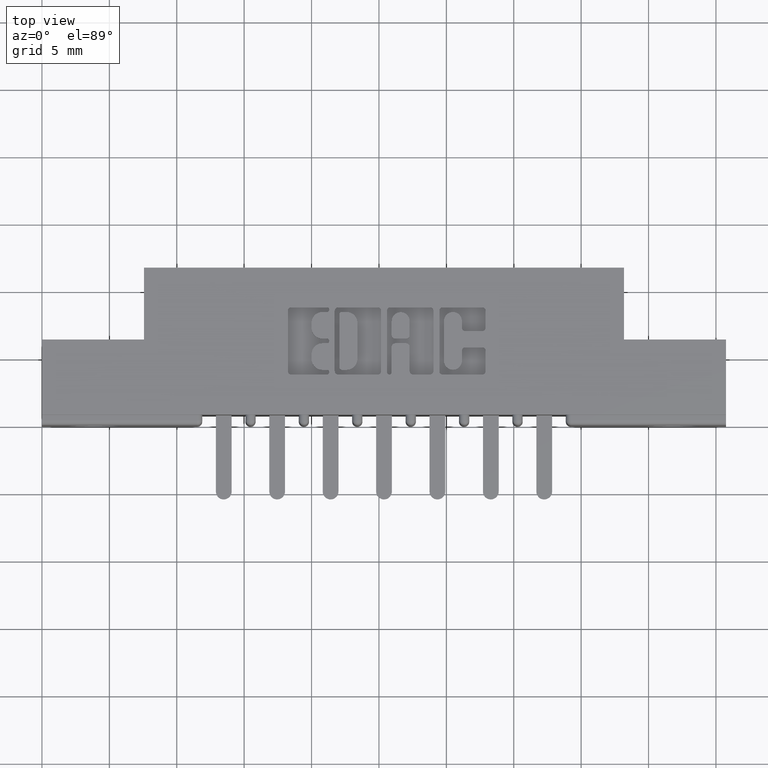
[diagram: clean part render]
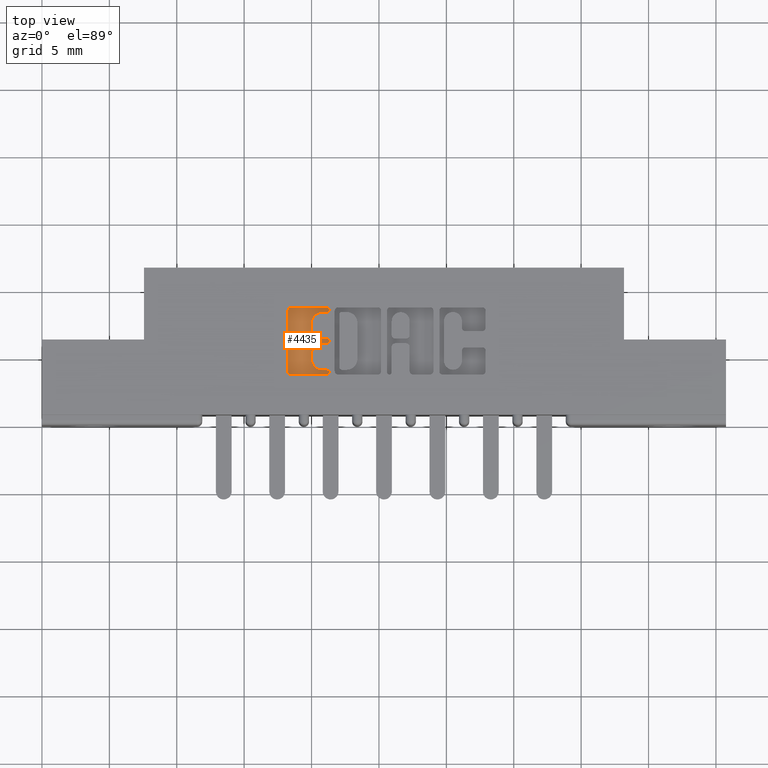
[diagram: same view with one face highlighted and labeled with its STEP entity id]
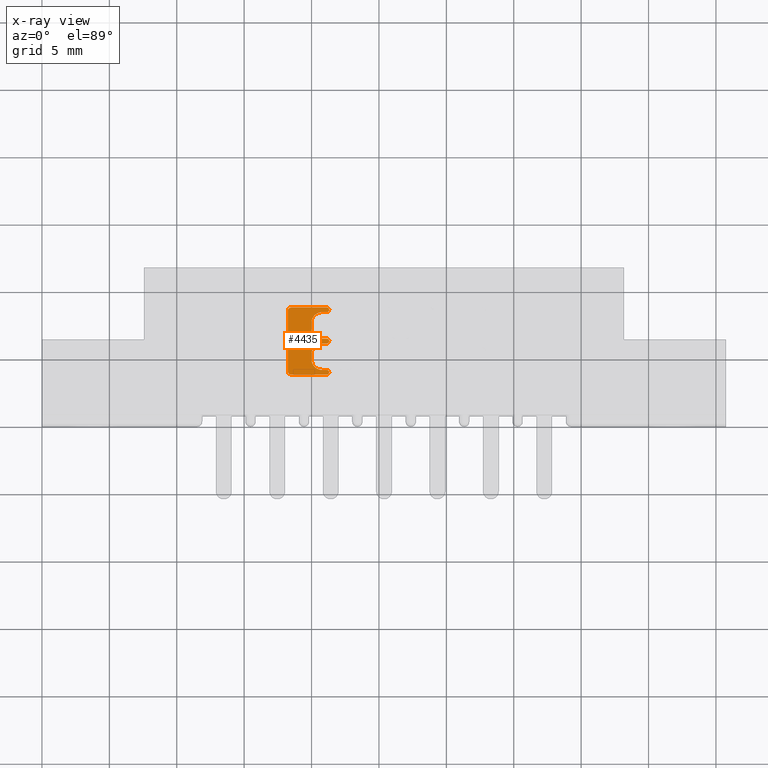
[diagram: x-ray of the same camera — body ghosted, the highlighted face saturated]
A machine part, top view. The second image highlights one B-rep face of the part: STEP entity #4435.
The next image is the same camera in x-ray: the body ghosted, the highlighted face saturated — about 0% of this face is hidden behind the body in this view.
In plain terms, the highlighted planar face has unit normal (0, 0, 1).
Its self-contained STEP definition (entity closure, byte-faithful):
#32 = VERTEX_POINT ( 'NONE', #7226 ) ;
#114 = VECTOR ( 'NONE', #4771, 39.37007874015748100 ) ;
#243 = VERTEX_POINT ( 'NONE', #1225 ) ;
#392 = VERTEX_POINT ( 'NONE', #11769 ) ;
#413 = ORIENTED_EDGE ( 'NONE', *, *, #1010, .T. ) ;
#488 = LINE ( 'NONE', #4580, #10537 ) ;
#530 = ORIENTED_EDGE ( 'NONE', *, *, #2245, .T. ) ;
#543 = VERTEX_POINT ( 'NONE', #7620 ) ;
#737 = AXIS2_PLACEMENT_3D ( 'NONE', #1896, #1925, #1958 ) ;
#756 = DIRECTION ( 'NONE',  ( -0.0000000000000000000, 0.0000000000000000000, 1.000000000000000000 ) ) ;
#757 = VERTEX_POINT ( 'NONE', #10486 ) ;
#869 = ORIENTED_EDGE ( 'NONE', *, *, #2260, .T. ) ;
#876 = AXIS2_PLACEMENT_3D ( 'NONE', #2566, #9566, #9499 ) ;
#912 = EDGE_CURVE ( 'NONE', #8102, #5286, #5911, .T. ) ;
#940 = EDGE_CURVE ( 'NONE', #543, #243, #9705, .T. ) ;
#1010 = EDGE_CURVE ( 'NONE', #9501, #32, #3511, .T. ) ;
#1039 = AXIS2_PLACEMENT_3D ( 'NONE', #1310, #8124, #8280 ) ;
#1078 = CARTESIAN_POINT ( 'NONE',  ( 0.8186370600051253700, 0.2985046191005228400, -0.01000000000000000000 ) ) ;
#1106 = CARTESIAN_POINT ( 'NONE',  ( 0.8321336065353512900, 0.3299147637527387600, -0.01000000000000000000 ) ) ;
#1225 = CARTESIAN_POINT ( 'NONE',  ( 0.8321336064154143400, 0.1610852362473132500, -0.01000000000000000000 ) ) ;
#1237 = CARTESIAN_POINT ( 'NONE',  ( 0.8186370600050839600, 0.2072188862052035700, -0.01000000000000000000 ) ) ;
#1253 = VERTEX_POINT ( 'NONE', #5227 ) ;
#1289 = CARTESIAN_POINT ( 'NONE',  ( 0.7180264404161154100, 0.1571589681657929700, -0.01000000000000000000 ) ) ;
#1310 = CARTESIAN_POINT ( 'NONE',  ( 0.8321336065353355200, 0.1542142671046509700, -0.01000000000000000000 ) ) ;
#1497 = CARTESIAN_POINT ( 'NONE',  ( 0.7872269153529095600, 0.0000000000000000000, -0.01000000000000000000 ) ) ;
#1585 = VERTEX_POINT ( 'NONE', #4252 ) ;
#1616 = LINE ( 'NONE', #9672, #6627 ) ;
#1680 = AXIS2_PLACEMENT_3D ( 'NONE', #11497, #11355, #11241 ) ;
#1729 = DIRECTION ( 'NONE',  ( 1.000000000000000000, 0.0000000000000000000, 0.0000000000000000000 ) ) ;
#1896 = CARTESIAN_POINT ( 'NONE',  ( 0.8321336065353512900, 0.3367857328953892700, -0.01000000000000000000 ) ) ;
#1925 = DIRECTION ( 'NONE',  ( -0.0000000000000000000, 0.0000000000000000000, 1.000000000000000000 ) ) ;
#1928 = EDGE_CURVE ( 'NONE', #392, #11152, #10328, .T. ) ;
#1958 = DIRECTION ( 'NONE',  ( 1.000000000000000000, 0.0000000000000000000, 0.0000000000000000000 ) ) ;
#1967 = EDGE_CURVE ( 'NONE', #3816, #11152, #2143, .T. ) ;
#1973 = EDGE_CURVE ( 'NONE', #3816, #757, #5127, .T. ) ;
#1977 = VECTOR ( 'NONE', #4999, 39.37007874015748100 ) ;
#2007 = AXIS2_PLACEMENT_3D ( 'NONE', #5121, #3519, #7414 ) ;
#2011 = EDGE_CURVE ( 'NONE', #32, #757, #6469, .T. ) ;
#2029 = EDGE_CURVE ( 'NONE', #5444, #9501, #8938, .T. ) ;
#2050 = EDGE_CURVE ( 'NONE', #10271, #5444, #5867, .T. ) ;
#2054 = EDGE_CURVE ( 'NONE', #10271, #11503, #8056, .T. ) ;
#2069 = EDGE_CURVE ( 'NONE', #1585, #11503, #3316, .T. ) ;
#2103 = EDGE_CURVE ( 'NONE', #1585, #7206, #4971, .T. ) ;
#2111 = EDGE_CURVE ( 'NONE', #243, #7206, #11760, .T. ) ;
#2132 = LINE ( 'NONE', #7337, #7068 ) ;
#2143 = LINE ( 'NONE', #1497, #7355 ) ;
#2163 = EDGE_CURVE ( 'NONE', #3767, #543, #4337, .T. ) ;
#2166 = EDGE_CURVE ( 'NONE', #8884, #3767, #1616, .T. ) ;
#2187 = EDGE_CURVE ( 'NONE', #8962, #8884, #6314, .T. ) ;
#2210 = EDGE_CURVE ( 'NONE', #1253, #8962, #488, .T. ) ;
#2229 = EDGE_CURVE ( 'NONE', #5637, #1253, #2641, .T. ) ;
#2245 = EDGE_CURVE ( 'NONE', #5286, #5637, #7633, .T. ) ;
#2255 = CARTESIAN_POINT ( 'NONE',  ( 0.8390045756779733700, 0.2455000000000233700, -0.01000000000000000000 ) ) ;
#2260 = EDGE_CURVE ( 'NONE', #5951, #8102, #5117, .T. ) ;
#2277 = EDGE_CURVE ( 'NONE', #392, #5951, #2132, .T. ) ;
#2566 = CARTESIAN_POINT ( 'NONE',  ( 0.7278421106199221000, 0.1571589681657929700, -0.01000000000000000000 ) ) ;
#2590 = ORIENTED_EDGE ( 'NONE', *, *, #2277, .T. ) ;
#2641 = CIRCLE ( 'NONE', #4601, 0.009815670203822599700 ) ;
#2675 = ORIENTED_EDGE ( 'NONE', *, *, #2229, .T. ) ;
#2789 = CARTESIAN_POINT ( 'NONE',  ( 0.8321336064153888000, 0.2386290308573598400, -0.01000000000000000000 ) ) ;
#2930 = ORIENTED_EDGE ( 'NONE', *, *, #1967, .T. ) ;
#3056 = ORIENTED_EDGE ( 'NONE', *, *, #2187, .T. ) ;
#3109 = AXIS2_PLACEMENT_3D ( 'NONE', #1237, #3410, #1729 ) ;
#3194 = AXIS2_PLACEMENT_3D ( 'NONE', #7397, #9517, #9510 ) ;
#3316 = LINE ( 'NONE', #4908, #5561 ) ;
#3319 = CARTESIAN_POINT ( 'NONE',  ( 0.0000000000000000000, 0.2386290308573598400, -0.01000000000000000000 ) ) ;
#3325 = CARTESIAN_POINT ( 'NONE',  ( 0.8390045756779998000, 0.3367857328953892700, -0.01000000000000000000 ) ) ;
#3347 = CARTESIAN_POINT ( 'NONE',  ( 0.7278421106199184400, 0.1473432979619880000, -0.01000000000000000000 ) ) ;
#3406 = DIRECTION ( 'NONE',  ( 0.0000000000000000000, 1.000000000000000000, -0.0000000000000000000 ) ) ;
#3410 = DIRECTION ( 'NONE',  ( -0.0000000000000000000, 0.0000000000000000000, 1.000000000000000000 ) ) ;
#3472 = DIRECTION ( 'NONE',  ( 1.000000000000000000, 0.0000000000000000000, 0.0000000000000000000 ) ) ;
#3484 = DIRECTION ( 'NONE',  ( -0.0000000000000000000, 0.0000000000000000000, 1.000000000000000000 ) ) ;
#3511 = CIRCLE ( 'NONE', #4276, 0.006870969142663458500 ) ;
#3519 = DIRECTION ( 'NONE',  ( -0.0000000000000000000, 0.0000000000000000000, 1.000000000000000000 ) ) ;
#3558 = CARTESIAN_POINT ( 'NONE',  ( 0.7872269153529277700, 0.2072188862052035700, -0.01000000000000000000 ) ) ;
#3740 = DIRECTION ( 'NONE',  ( -0.0000000000000000000, 0.0000000000000000000, 1.000000000000000000 ) ) ;
#3767 = VERTEX_POINT ( 'NONE', #4347 ) ;
#3806 = AXIS2_PLACEMENT_3D ( 'NONE', #7132, #7130, #4632 ) ;
#3816 = VERTEX_POINT ( 'NONE', #9225 ) ;
#3924 = CARTESIAN_POINT ( 'NONE',  ( 0.7872269153529095600, 0.2985046191005228400, -0.01000000000000000000 ) ) ;
#4233 = AXIS2_PLACEMENT_3D ( 'NONE', #1078, #12051, #12030 ) ;
#4252 = CARTESIAN_POINT ( 'NONE',  ( 0.7872269153529277700, 0.1924953808994934200, -0.01000000000000000000 ) ) ;
#4276 = AXIS2_PLACEMENT_3D ( 'NONE', #5646, #3484, #3472 ) ;
#4337 = CIRCLE ( 'NONE', #1039, 0.006870969142662229500 ) ;
#4347 = CARTESIAN_POINT ( 'NONE',  ( 0.8321336064154143400, 0.1473432979619887200, -0.01000000000000000000 ) ) ;
#4363 = ORIENTED_EDGE ( 'NONE', *, *, #2011, .T. ) ;
#4387 = AXIS2_PLACEMENT_3D ( 'NONE', #11917, #756, #10923 ) ;
#4435 = ADVANCED_FACE ( 'NONE', ( #6783 ), #9382, .T. ) ;
#4580 = CARTESIAN_POINT ( 'NONE',  ( 0.7180264404161154100, 0.0000000000000000000, -0.01000000000000000000 ) ) ;
#4601 = AXIS2_PLACEMENT_3D ( 'NONE', #6162, #6248, #4948 ) ;
#4632 = DIRECTION ( 'NONE',  ( 1.000000000000000000, 0.0000000000000000000, 0.0000000000000000000 ) ) ;
#4771 = DIRECTION ( 'NONE',  ( -1.000000000000000000, 0.0000000000000000000, 0.0000000000000000000 ) ) ;
#4908 = CARTESIAN_POINT ( 'NONE',  ( 0.7872269153529277700, 0.0000000000000000000, -0.01000000000000000000 ) ) ;
#4923 = ORIENTED_EDGE ( 'NONE', *, *, #940, .T. ) ;
#4948 = DIRECTION ( 'NONE',  ( 1.000000000000000000, 0.0000000000000000000, 0.0000000000000000000 ) ) ;
#4971 = CIRCLE ( 'NONE', #2007, 0.03141014465218178200 ) ;
#4979 = DIRECTION ( 'NONE',  ( 0.0000000000000000000, 1.000000000000000000, -0.0000000000000000000 ) ) ;
#4999 = DIRECTION ( 'NONE',  ( -1.000000000000000000, -1.189163988687022500E-013, 0.0000000000000000000 ) ) ;
#5117 = CIRCLE ( 'NONE', #1680, 0.006870969142648433200 ) ;
#5121 = CARTESIAN_POINT ( 'NONE',  ( 0.8186370600051095000, 0.1924953808994934200, -0.01000000000000000000 ) ) ;
#5127 = CIRCLE ( 'NONE', #3806, 0.03141014465217440600 ) ;
#5227 = CARTESIAN_POINT ( 'NONE',  ( 0.7180264404161154100, 0.3338410318342131500, -0.01000000000000000000 ) ) ;
#5286 = VERTEX_POINT ( 'NONE', #8316 ) ;
#5444 = VERTEX_POINT ( 'NONE', #2789 ) ;
#5547 = ORIENTED_EDGE ( 'NONE', *, *, #2163, .T. ) ;
#5561 = VECTOR ( 'NONE', #4979, 39.37007874015748100 ) ;
#5637 = VERTEX_POINT ( 'NONE', #8687 ) ;
#5646 = CARTESIAN_POINT ( 'NONE',  ( 0.8321336065353099900, 0.2455000000000233700, -0.01000000000000000000 ) ) ;
#5768 = ORIENTED_EDGE ( 'NONE', *, *, #2166, .T. ) ;
#5867 = LINE ( 'NONE', #3319, #10433 ) ;
#5911 = CIRCLE ( 'NONE', #737, 0.006870969142648433200 ) ;
#5951 = VERTEX_POINT ( 'NONE', #1106 ) ;
#6162 = CARTESIAN_POINT ( 'NONE',  ( 0.7278421106199379800, 0.3338410318342131500, -0.01000000000000000000 ) ) ;
#6248 = DIRECTION ( 'NONE',  ( -0.0000000000000000000, 0.0000000000000000000, 1.000000000000000000 ) ) ;
#6314 = CIRCLE ( 'NONE', #876, 0.009815670203805798900 ) ;
#6469 = LINE ( 'NONE', #7989, #11158 ) ;
#6537 = ORIENTED_EDGE ( 'NONE', *, *, #2111, .T. ) ;
#6627 = VECTOR ( 'NONE', #9803, 39.37007874015748100 ) ;
#6632 = CARTESIAN_POINT ( 'NONE',  ( 0.8186370600051095000, 0.1610852362473116400, -0.01000000000000000000 ) ) ;
#6783 = FACE_OUTER_BOUND ( 'NONE', #10108, .T. ) ;
#6879 = DIRECTION ( 'NONE',  ( 1.000000000000000000, 0.0000000000000000000, 0.0000000000000000000 ) ) ;
#7058 = ORIENTED_EDGE ( 'NONE', *, *, #2103, .F. ) ;
#7068 = VECTOR ( 'NONE', #6879, 39.37007874015748100 ) ;
#7130 = DIRECTION ( 'NONE',  ( -0.0000000000000000000, 0.0000000000000000000, 1.000000000000000000 ) ) ;
#7132 = CARTESIAN_POINT ( 'NONE',  ( 0.8186370600050839600, 0.2837811137948613700, -0.01000000000000000000 ) ) ;
#7143 = ORIENTED_EDGE ( 'NONE', *, *, #1973, .F. ) ;
#7206 = VERTEX_POINT ( 'NONE', #6632 ) ;
#7226 = CARTESIAN_POINT ( 'NONE',  ( 0.8321336065353099900, 0.2523709691426868600, -0.01000000000000000000 ) ) ;
#7282 = ORIENTED_EDGE ( 'NONE', *, *, #2069, .T. ) ;
#7337 = CARTESIAN_POINT ( 'NONE',  ( 0.0000000000000000000, 0.3299147637527387600, -0.01000000000000000000 ) ) ;
#7355 = VECTOR ( 'NONE', #3406, 39.37007874015748100 ) ;
#7397 = CARTESIAN_POINT ( 'NONE',  ( 0.8321336065353099900, 0.2455000000000233700, -0.01000000000000000000 ) ) ;
#7414 = DIRECTION ( 'NONE',  ( 1.000000000000000000, 0.0000000000000000000, 0.0000000000000000000 ) ) ;
#7520 = ORIENTED_EDGE ( 'NONE', *, *, #1928, .F. ) ;
#7526 = CARTESIAN_POINT ( 'NONE',  ( 0.0000000000000000000, 0.0000000000000000000, -0.01000000000000000000 ) ) ;
#7620 = CARTESIAN_POINT ( 'NONE',  ( 0.8390045756779976900, 0.1542142671046509700, -0.01000000000000000000 ) ) ;
#7633 = LINE ( 'NONE', #9172, #114 ) ;
#7720 = ORIENTED_EDGE ( 'NONE', *, *, #2210, .T. ) ;
#7989 = CARTESIAN_POINT ( 'NONE',  ( 0.0000000000000000000, 0.2523709691426868600, -0.01000000000000000000 ) ) ;
#8056 = CIRCLE ( 'NONE', #3109, 0.03141014465215624000 ) ;
#8080 = DIRECTION ( 'NONE',  ( -1.000000000000000000, 0.0000000000000000000, 0.0000000000000000000 ) ) ;
#8102 = VERTEX_POINT ( 'NONE', #3325 ) ;
#8124 = DIRECTION ( 'NONE',  ( -0.0000000000000000000, 0.0000000000000000000, 1.000000000000000000 ) ) ;
#8280 = DIRECTION ( 'NONE',  ( 1.000000000000000000, 0.0000000000000000000, 0.0000000000000000000 ) ) ;
#8316 = CARTESIAN_POINT ( 'NONE',  ( 0.8321336065353512900, 0.3436567020380357200, -0.01000000000000000000 ) ) ;
#8687 = CARTESIAN_POINT ( 'NONE',  ( 0.7278421106199379800, 0.3436567020380357200, -0.01000000000000000000 ) ) ;
#8884 = VERTEX_POINT ( 'NONE', #3347 ) ;
#8938 = CIRCLE ( 'NONE', #3194, 0.006870969142663458500 ) ;
#8962 = VERTEX_POINT ( 'NONE', #1289 ) ;
#8997 = AXIS2_PLACEMENT_3D ( 'NONE', #7526, #3740, #10261 ) ;
#9035 = ORIENTED_EDGE ( 'NONE', *, *, #2054, .F. ) ;
#9172 = CARTESIAN_POINT ( 'NONE',  ( 0.0000000000000000000, 0.3436567020380357200, -0.01000000000000000000 ) ) ;
#9225 = CARTESIAN_POINT ( 'NONE',  ( 0.7872269153529095600, 0.2837811137948613700, -0.01000000000000000000 ) ) ;
#9382 = PLANE ( 'NONE',  #8997 ) ;
#9499 = DIRECTION ( 'NONE',  ( 1.000000000000000000, 0.0000000000000000000, 0.0000000000000000000 ) ) ;
#9501 = VERTEX_POINT ( 'NONE', #2255 ) ;
#9510 = DIRECTION ( 'NONE',  ( 1.000000000000000000, 0.0000000000000000000, 0.0000000000000000000 ) ) ;
#9517 = DIRECTION ( 'NONE',  ( -0.0000000000000000000, 0.0000000000000000000, 1.000000000000000000 ) ) ;
#9566 = DIRECTION ( 'NONE',  ( -0.0000000000000000000, 0.0000000000000000000, 1.000000000000000000 ) ) ;
#9672 = CARTESIAN_POINT ( 'NONE',  ( -1.013135022034649200E-015, 0.1473432979619830100, -0.01000000000000000000 ) ) ;
#9705 = CIRCLE ( 'NONE', #4387, 0.006870969142662229500 ) ;
#9769 = CARTESIAN_POINT ( 'NONE',  ( -1.915567620543286900E-014, 0.1610852362472142700, -0.01000000000000000000 ) ) ;
#9803 = DIRECTION ( 'NONE',  ( 1.000000000000000000, 6.876017002796114900E-015, 0.0000000000000000000 ) ) ;
#10108 = EDGE_LOOP ( 'NONE', ( #7520, #2590, #869, #10603, #530, #2675, #7720, #3056, #5768, #5547, #4923, #6537, #7058, #7282, #9035, #10323, #10357, #413, #4363, #7143, #2930 ) ) ;
#10238 = DIRECTION ( 'NONE',  ( 1.000000000000000000, 0.0000000000000000000, 0.0000000000000000000 ) ) ;
#10261 = DIRECTION ( 'NONE',  ( 1.000000000000000000, 0.0000000000000000000, 0.0000000000000000000 ) ) ;
#10271 = VERTEX_POINT ( 'NONE', #11249 ) ;
#10323 = ORIENTED_EDGE ( 'NONE', *, *, #2050, .T. ) ;
#10328 = CIRCLE ( 'NONE', #4233, 0.03141014465221578900 ) ;
#10357 = ORIENTED_EDGE ( 'NONE', *, *, #2029, .T. ) ;
#10433 = VECTOR ( 'NONE', #10238, 39.37007874015748100 ) ;
#10486 = CARTESIAN_POINT ( 'NONE',  ( 0.8186370600050839600, 0.2523709691426868600, -0.01000000000000000000 ) ) ;
#10537 = VECTOR ( 'NONE', #11742, 39.37007874015748100 ) ;
#10603 = ORIENTED_EDGE ( 'NONE', *, *, #912, .T. ) ;
#10923 = DIRECTION ( 'NONE',  ( 1.000000000000000000, 0.0000000000000000000, 0.0000000000000000000 ) ) ;
#11152 = VERTEX_POINT ( 'NONE', #3924 ) ;
#11158 = VECTOR ( 'NONE', #8080, 39.37007874015748100 ) ;
#11241 = DIRECTION ( 'NONE',  ( 1.000000000000000000, 0.0000000000000000000, 0.0000000000000000000 ) ) ;
#11249 = CARTESIAN_POINT ( 'NONE',  ( 0.8186370600050839600, 0.2386290308573598400, -0.01000000000000000000 ) ) ;
#11355 = DIRECTION ( 'NONE',  ( -0.0000000000000000000, 0.0000000000000000000, 1.000000000000000000 ) ) ;
#11497 = CARTESIAN_POINT ( 'NONE',  ( 0.8321336065353512900, 0.3367857328953892700, -0.01000000000000000000 ) ) ;
#11503 = VERTEX_POINT ( 'NONE', #3558 ) ;
#11742 = DIRECTION ( 'NONE',  ( 0.0000000000000000000, -1.000000000000000000, 0.0000000000000000000 ) ) ;
#11760 = LINE ( 'NONE', #9769, #1977 ) ;
#11769 = CARTESIAN_POINT ( 'NONE',  ( 0.8186370600051253700, 0.3299147637527387600, -0.01000000000000000000 ) ) ;
#11917 = CARTESIAN_POINT ( 'NONE',  ( 0.8321336065353355200, 0.1542142671046509700, -0.01000000000000000000 ) ) ;
#12030 = DIRECTION ( 'NONE',  ( 1.000000000000000000, 0.0000000000000000000, 0.0000000000000000000 ) ) ;
#12051 = DIRECTION ( 'NONE',  ( -0.0000000000000000000, 0.0000000000000000000, 1.000000000000000000 ) ) ;